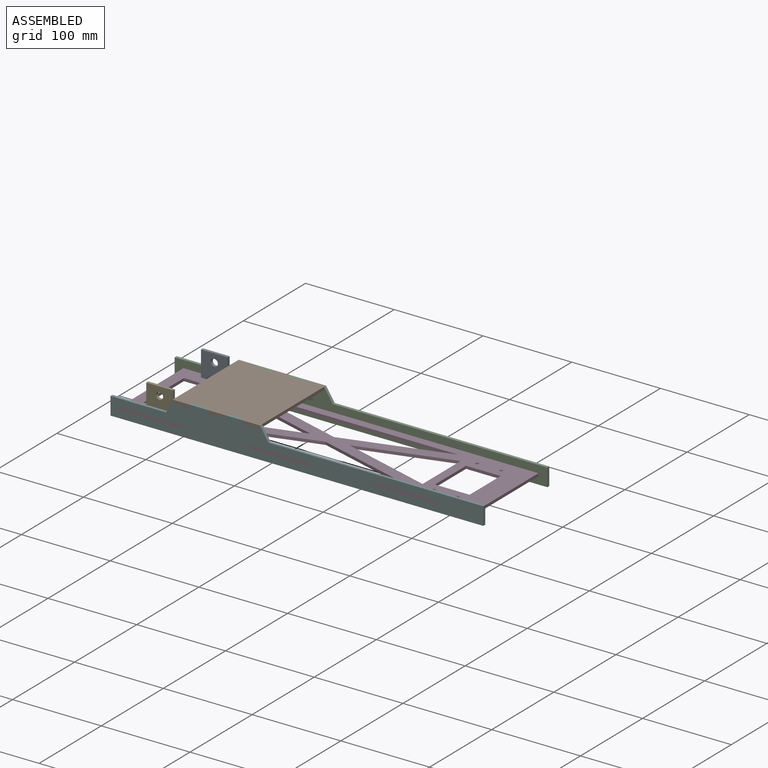
[diagram: assembled view]
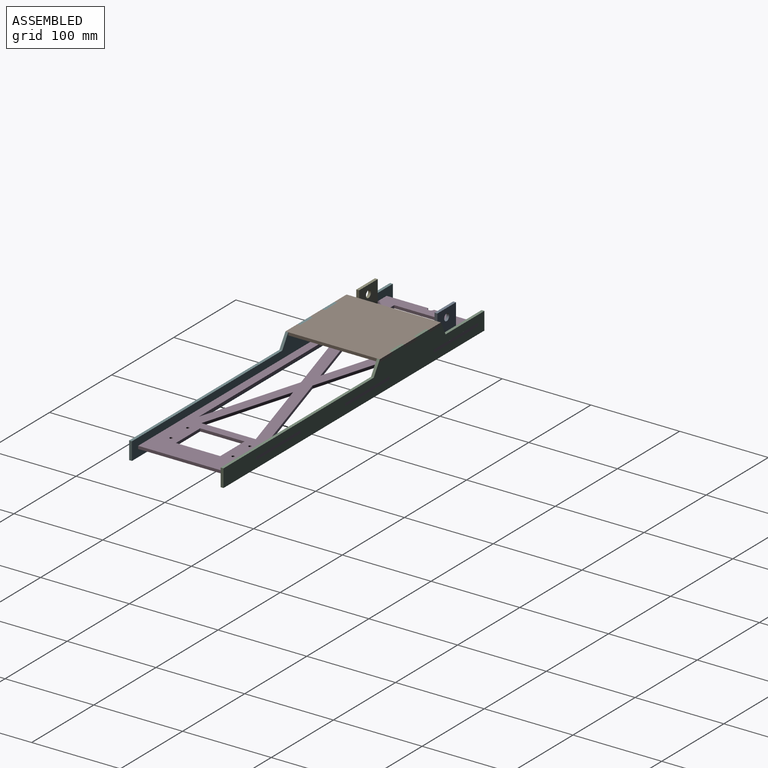
[diagram: assembled view, second angle]
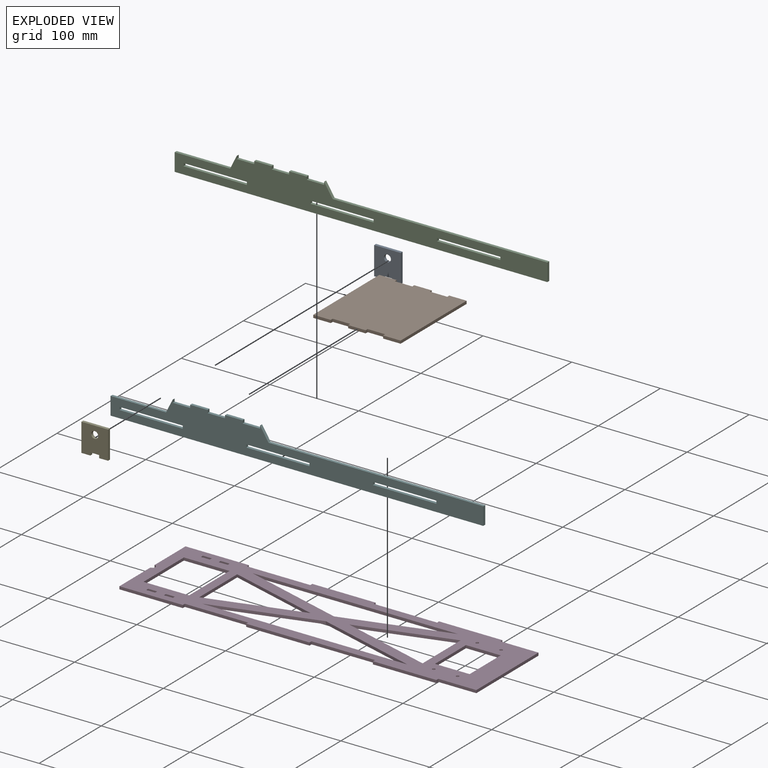
[diagram: exploded view]
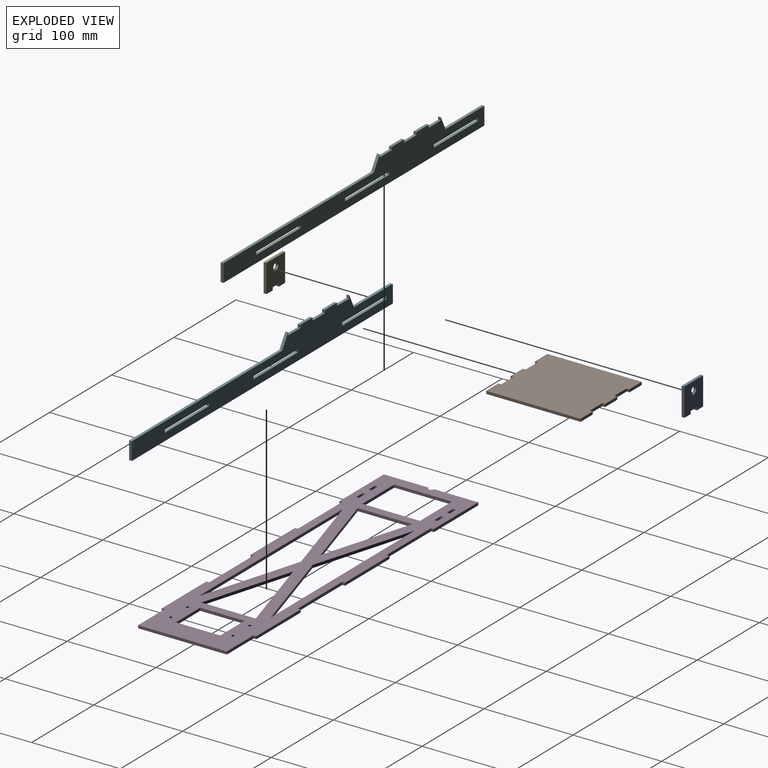
[diagram: exploded view, second angle]
ASSEMBLY  parts=6 mates=5
PART A: 11 faces, bbox 30x3.2x31.8 mm
  f0: plane 31.75x3.18mm, normal (1,0,0), area 100.8mm2, adj f1,f8,f9,f10
  f1: plane 30x3.18mm, normal (0,0,1), area 95.2mm2, adj f0,f2,f9,f10
  f2: plane 31.75x3.18mm, normal (-1,0,0), area 100.8mm2, adj f1,f3,f9,f10
  f3: plane 10x3.18mm, normal (0,0,-1), area 31.7mm2, adj f2,f4,f9,f10
  f4: plane 3.18x3.18mm, normal (1,0,0), area 10.1mm2, adj f3,f5,f9,f10
  f5: plane 10x3.18mm, normal (0,0,-1), area 31.8mm2, adj f4,f6,f9,f10
  f6: plane 3.18x3.18mm, normal (-1,0,0), area 10.1mm2, adj f5,f8,f9,f10
  f7: cylinder r=3.96mm len=7.92mm, axis (0,1,0), area 79mm2, adj f9,f10
  f8: plane 10x3.18mm, normal (0,0,-1), area 31.7mm2, adj f0,f6,f9,f10
  f9: plane 31.75x30mm, normal (0,-1,0), area 871.4mm2, adj f0,f1,f2,f3,f4,f5,f6,f7
  f10: plane 31.75x30mm, normal (0,1,0), area 871.4mm2, adj f0,f1,f2,f3,f4,f5,f6,f7
PART B: 22 faces, bbox 98.4x106.4x3.2 mm
  f0: plane 106.35x3.18mm, normal (-1,0,0), area 337.7mm2, adj f1,f19,f20,f21
  f1: plane 19.69x3.18mm, normal (0,-1,0), area 62.5mm2, adj f0,f2,f20,f21
  f2: plane 3.18x3.18mm, normal (1,0,0), area 10.1mm2, adj f1,f3,f20,f21
  f3: plane 19.69x3.18mm, normal (0,-1,0), area 62.5mm2, adj f2,f4,f20,f21
  f4: plane 3.18x3.18mm, normal (-1,0,0), area 10.1mm2, adj f3,f5,f20,f21
  f5: plane 19.69x3.18mm, normal (0,-1,0), area 62.5mm2, adj f4,f6,f20,f21
  f6: plane 3.18x3.18mm, normal (1,0,0), area 10.1mm2, adj f5,f7,f20,f21
  f7: plane 19.69x3.18mm, normal (0,-1,0), area 62.5mm2, adj f6,f8,f20,f21
  f8: plane 3.18x3.18mm, normal (-1,0,0), area 10.1mm2, adj f7,f9,f20,f21
  f9: plane 19.69x3.18mm, normal (0,-1,0), area 62.5mm2, adj f8,f10,f20,f21
  f10: plane 106.35x3.18mm, normal (1,0,0), area 337.7mm2, adj f9,f11,f20,f21
  f11: plane 19.69x3.18mm, normal (0,1,0), area 62.5mm2, adj f10,f12,f20,f21
  f12: plane 3.18x3.18mm, normal (-1,0,0), area 10.1mm2, adj f11,f13,f20,f21
  f13: plane 19.69x3.18mm, normal (0,1,0), area 62.5mm2, adj f12,f14,f20,f21
  f14: plane 3.18x3.18mm, normal (1,0,0), area 10.1mm2, adj f13,f15,f20,f21
  f15: plane 19.69x3.18mm, normal (0,1,0), area 62.5mm2, adj f14,f16,f20,f21
  f16: plane 3.18x3.18mm, normal (-1,0,0), area 10.1mm2, adj f15,f17,f20,f21
  f17: plane 19.69x3.18mm, normal (0,1,0), area 62.5mm2, adj f16,f18,f20,f21
  f18: plane 3.18x3.18mm, normal (1,0,0), area 10.1mm2, adj f17,f19,f20,f21
  f19: plane 19.69x3.18mm, normal (0,1,0), area 62.5mm2, adj f0,f18,f20,f21
  f20: plane 106.35x98.43mm, normal (0,0,1), area 10217.5mm2, adj f0,f1,f2,f3,f4,f5,f6,f7
  f21: plane 106.35x98.43mm, normal (0,0,-1), area 10217.5mm2, adj f0,f1,f2,f3,f4,f5,f6,f7
PART C: 32 faces, bbox 420x3.2x35 mm
  f0: plane 3.18x3.18mm, normal (1,0,0), area 10.1mm2, adj f1,f29,f30,f31
  f1: plane 71.43x3.18mm, normal (0,0,-1), area 226.8mm2, adj f0,f2,f30,f31
  f2: plane 3.18x3.18mm, normal (-1,0,0), area 10.1mm2, adj f1,f29,f30,f31
  f3: plane 71.43x3.18mm, normal (0,0,1), area 226.8mm2, adj f4,f26,f30,f31
  f4: plane 3.18x3.18mm, normal (1,0,0), area 10.1mm2, adj f3,f5,f30,f31
  f5: plane 71.43x3.18mm, normal (0,0,-1), area 226.8mm2, adj f4,f26,f30,f31
  f6: plane 3.18x3.18mm, normal (-1,0,0), area 10.1mm2, adj f7,f27,f30,f31
  f7: plane 71.43x3.18mm, normal (0,0,1), area 226.8mm2, adj f6,f8,f30,f31
  f8: plane 3.18x3.18mm, normal (1,0,0), area 10.1mm2, adj f7,f27,f30,f31
  f9: plane 19.69x3.18mm, normal (0,0,1), area 62.5mm2, adj f10,f28,f30,f31
  f10: plane 3.18x3.18mm, normal (1,0,0), area 10.1mm2, adj f9,f11,f30,f31
  f11: plane 15x7.49mm, normal (-0.89,0,0.45), area 53.2mm2, adj f10,f12,f30,f31
  f12: plane 62.51x3.18mm, normal (0,0,1), area 198.5mm2, adj f11,f13,f30,f31
  f13: plane 20x3.18mm, normal (-1,0,0), area 63.5mm2, adj f12,f14,f30,f31
  f14: plane 420x3.18mm, normal (0,0,-1), area 1333.5mm2, adj f13,f15,f30,f31
  f15: plane 20x3.18mm, normal (1,0,0), area 63.5mm2, adj f14,f16,f30,f31
  f16: plane 241.89x3.18mm, normal (0,0,1), area 768mm2, adj f15,f17,f30,f31
  f17: plane 15x9.68mm, normal (0.84,0,0.54), area 56.7mm2, adj f16,f18,f30,f31
  f18: plane 3.18x3.18mm, normal (-1,0,0), area 10.1mm2, adj f17,f19,f30,f31
  f19: plane 19.69x3.18mm, normal (0,0,1), area 62.5mm2, adj f18,f20,f30,f31
  f20: plane 3.18x3.18mm, normal (1,0,0), area 10.1mm2, adj f19,f21,f30,f31
  f21: plane 19.69x3.18mm, normal (0,0,1), area 62.5mm2, adj f20,f22,f30,f31
  f22: plane 3.18x3.18mm, normal (-1,0,0), area 10.1mm2, adj f21,f23,f30,f31
  f23: plane 19.69x3.18mm, normal (0,0,1), area 62.5mm2, adj f22,f24,f30,f31
  f24: plane 3.18x3.18mm, normal (1,0,0), area 10.1mm2, adj f23,f25,f30,f31
  f25: plane 19.69x3.18mm, normal (0,0,1), area 62.5mm2, adj f24,f28,f30,f31
  f26: plane 3.18x3.18mm, normal (-1,0,0), area 10.1mm2, adj f3,f5,f30,f31
  f27: plane 71.43x3.18mm, normal (0,0,-1), area 226.8mm2, adj f6,f8,f30,f31
  f28: plane 3.18x3.18mm, normal (-1,0,0), area 10.1mm2, adj f9,f25,f30,f31
  f29: plane 71.43x3.18mm, normal (0,0,1), area 226.8mm2, adj f0,f2,f30,f31
  f30: plane 420x35mm, normal (0,-1,0), area 9137.3mm2, adj f0,f1,f2,f3,f4,f5,f6,f7
  f31: plane 420x35mm, normal (0,1,0), area 9137.3mm2, adj f0,f1,f2,f3,f4,f5,f6,f7
PART D: 68 faces, bbox 400x3.2x106.4 mm
  f0: plane 65x3.18mm, normal (1,0,0), area 206.4mm2, adj f1,f65,f66,f67
  f1: plane 51.43x3.18mm, normal (0,0,-1), area 163.3mm2, adj f0,f2,f66,f67
  f2: plane 65x3.18mm, normal (-1,0,0), area 206.4mm2, adj f1,f65,f66,f67
  f3: plane 50x3.18mm, normal (1,0,0), area 158.8mm2, adj f4,f51,f66,f67
  f4: plane 39.06x3.18mm, normal (0,0,-1), area 124mm2, adj f3,f5,f66,f67
  f5: plane 50x3.18mm, normal (-1,0,0), area 158.8mm2, adj f4,f51,f66,f67
  f6: plane 10x3.18mm, normal (0,0,-1), area 31.8mm2, adj f7,f52,f66,f67
  f7: plane 3.18x3.18mm, normal (-1,0,0), area 10.1mm2, adj f6,f8,f66,f67
  f8: plane 10x3.18mm, normal (0,0,1), area 31.8mm2, adj f7,f52,f66,f67
  f9: plane 10x3.18mm, normal (0,0,1), area 31.8mm2, adj f10,f53,f66,f67
  f10: plane 3.18x3.18mm, normal (1,0,0), area 10.1mm2, adj f9,f11,f66,f67
  f11: plane 10x3.18mm, normal (0,0,-1), area 31.8mm2, adj f10,f53,f66,f67
  f12: plane 49.87x3.18mm, normal (-1,0,0), area 158.3mm2, adj f13,f56,f66,f67
  f13: cylinder r=3.3mm len=6.6mm, axis (0,1,0), area 32.9mm2, adj f12,f14,f66,f67
  f14: plane 49.87x3.18mm, normal (-1,0,0), area 158.3mm2, adj f13,f15,f66,f67
  f15: plane 71.43x3.18mm, normal (0,0,-1), area 226.8mm2, adj f14,f16,f66,f67
  f16: plane 3.18x3.18mm, normal (1,0,0), area 10.1mm2, adj f15,f17,f66,f67
  f17: plane 71.43x3.18mm, normal (0,0,-1), area 226.8mm2, adj f16,f18,f66,f67
  f18: plane 3.18x3.18mm, normal (-1,0,0), area 10.1mm2, adj f17,f19,f66,f67
  f19: plane 71.43x3.18mm, normal (0,0,-1), area 226.8mm2, adj f18,f20,f66,f67
  f20: plane 3.18x3.18mm, normal (1,0,0), area 10.1mm2, adj f19,f21,f66,f67
  f21: plane 71.43x3.18mm, normal (0,0,-1), area 226.8mm2, adj f20,f22,f66,f67
  f22: plane 3.18x3.18mm, normal (-1,0,0), area 10.1mm2, adj f21,f23,f66,f67
  f23: plane 71.43x3.18mm, normal (0,0,-1), area 226.8mm2, adj f22,f24,f66,f67
  f24: plane 3.18x3.18mm, normal (1,0,0), area 10.1mm2, adj f23,f25,f66,f67
  f25: plane 42.86x3.18mm, normal (0,0,-1), area 136.1mm2, adj f24,f26,f66,f67
  f26: plane 100x3.18mm, normal (1,0,0), area 317.5mm2, adj f25,f27,f66,f67
  f27: plane 42.86x3.18mm, normal (0,0,1), area 136.1mm2, adj f26,f28,f66,f67
  f28: plane 3.18x3.18mm, normal (1,0,0), area 10.1mm2, adj f27,f29,f66,f67
  f29: plane 71.43x3.18mm, normal (0,0,1), area 226.8mm2, adj f28,f30,f66,f67
  f30: plane 3.18x3.18mm, normal (-1,0,0), area 10.1mm2, adj f29,f31,f66,f67
  f31: plane 71.43x3.18mm, normal (0,0,1), area 226.8mm2, adj f30,f32,f66,f67
  f32: plane 3.18x3.18mm, normal (1,0,0), area 10.1mm2, adj f31,f33,f66,f67
  f33: plane 71.43x3.18mm, normal (0,0,1), area 226.8mm2, adj f32,f34,f66,f67
  f34: plane 3.18x3.18mm, normal (-1,0,0), area 10.1mm2, adj f33,f35,f66,f67
  f35: plane 71.43x3.18mm, normal (0,0,1), area 226.8mm2, adj f34,f36,f66,f67
  f36: plane 3.18x3.18mm, normal (1,0,0), area 10.1mm2, adj f35,f56,f66,f67
  f37: plane 3.18x3.18mm, normal (-1,0,0), area 10.1mm2, adj f38,f59,f66,f67
  f38: plane 10x3.18mm, normal (0,0,1), area 31.8mm2, adj f37,f39,f66,f67
  f39: plane 3.18x3.18mm, normal (1,0,0), area 10.1mm2, adj f38,f59,f66,f67
  f40: plane 3.18x3.18mm, normal (1,0,0), area 10.1mm2, adj f41,f60,f66,f67
  f41: plane 10x3.18mm, normal (0,0,-1), area 31.8mm2, adj f40,f42,f66,f67
  f42: plane 3.18x3.18mm, normal (-1,0,0), area 10.1mm2, adj f41,f60,f66,f67
  f43: plane 231.74x3.18mm, normal (0,0,-1), area 735.8mm2, adj f44,f61,f66,f67
  f44: plane 115.87x34.16mm, normal (-0.28,0,0.96), area 383.5mm2, adj f43,f61,f66,f67
  f45: plane 103.91x30.63mm, normal (-0.28,0,0.96), area 343.9mm2, adj f46,f62,f66,f67
  f46: plane 61.26x3.18mm, normal (1,0,0), area 194.5mm2, adj f45,f62,f66,f67
  f47: plane 115.87x34.16mm, normal (-0.28,0,-0.96), area 383.5mm2, adj f48,f63,f66,f67
  f48: plane 231.74x3.18mm, normal (0,0,1), area 735.8mm2, adj f47,f63,f66,f67
  f49: plane 61.26x3.18mm, normal (-1,0,0), area 194.5mm2, adj f50,f64,f66,f67
  f50: plane 103.91x30.63mm, normal (0.28,0,0.96), area 343.9mm2, adj f49,f64,f66,f67
  f51: plane 39.06x3.18mm, normal (0,0,1), area 124mm2, adj f3,f5,f66,f67
  f52: plane 3.18x3.18mm, normal (1,0,0), area 10.1mm2, adj f6,f8,f66,f67
  f53: plane 3.18x3.18mm, normal (-1,0,0), area 10.1mm2, adj f9,f11,f66,f67
  f54: cylinder r=1.64mm len=3.28mm, axis (0,1,0), area 32.7mm2, adj f66,f67
  f55: cylinder r=1.64mm len=3.28mm, axis (0,1,0), area 32.7mm2, adj f66,f67
  f56: plane 71.43x3.18mm, normal (0,0,1), area 226.8mm2, adj f12,f36,f66,f67
  f57: cylinder r=1.64mm len=3.28mm, axis (0,1,0), area 32.7mm2, adj f66,f67
  f58: cylinder r=1.64mm len=3.28mm, axis (0,1,0), area 32.7mm2, adj f66,f67
  f59: plane 10x3.18mm, normal (0,0,-1), area 31.8mm2, adj f37,f39,f66,f67
  f60: plane 10x3.18mm, normal (0,0,1), area 31.8mm2, adj f40,f42,f66,f67
  f61: plane 115.87x34.16mm, normal (0.28,0,0.96), area 383.5mm2, adj f43,f44,f66,f67
  f62: plane 103.91x30.63mm, normal (-0.28,0,-0.96), area 343.9mm2, adj f45,f46,f66,f67
  f63: plane 115.87x34.16mm, normal (0.28,0,-0.96), area 383.5mm2, adj f47,f48,f66,f67
  f64: plane 103.91x30.63mm, normal (0.28,0,-0.96), area 343.9mm2, adj f49,f50,f66,f67
  f65: plane 51.43x3.18mm, normal (0,0,1), area 163.3mm2, adj f0,f2,f66,f67
  f66: plane 400x106.35mm, normal (0,-1,0), area 21606.2mm2, adj f0,f1,f2,f3,f4,f5,f6,f7
  f67: plane 400x106.35mm, normal (0,1,0), area 21606.2mm2, adj f0,f1,f2,f3,f4,f5,f6,f7
PART E: same geometry as A
PART F: same geometry as C
PLACE A t=(-309.2,41.22,206.71)mm
PLACE B t=(-240,10.55,214.24)mm
PLACE C t=(-99.21,48.72,192.42)mm
PLACE D rot(axis=(-1,0,0),90deg) t=(-71.36,-19.25,190.83)mm
PLACE E t=(-309.2,-46.95,206.71)mm
PLACE F t=(-99.21,-54.45,192.42)mm
MATE fastened D.f66 <-> C.f5  axis (0,0,1) through (-277.78,48.72,194.01)mm
MATE fastened E.f9 <-> D.f8  axis (0,-1,0) through (-294.2,-50.13,190.83)mm
MATE fastened A.f9 <-> D.f9  axis (0,-1,0) through (-324.2,38.05,190.83)mm
MATE fastened F.f5 <-> D.f66  axis (0,0,-1) through (-277.78,-57.63,194.01)mm
MATE fastened B.f21 <-> C.f9  axis (0,0,-1) through (-289.21,48.72,214.24)mm
